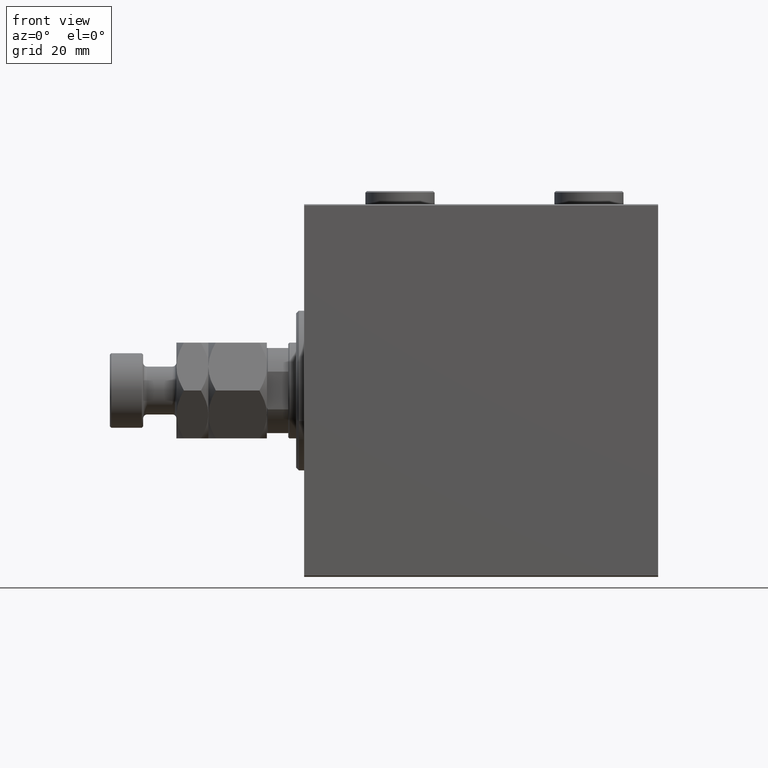
[diagram: clean part render]
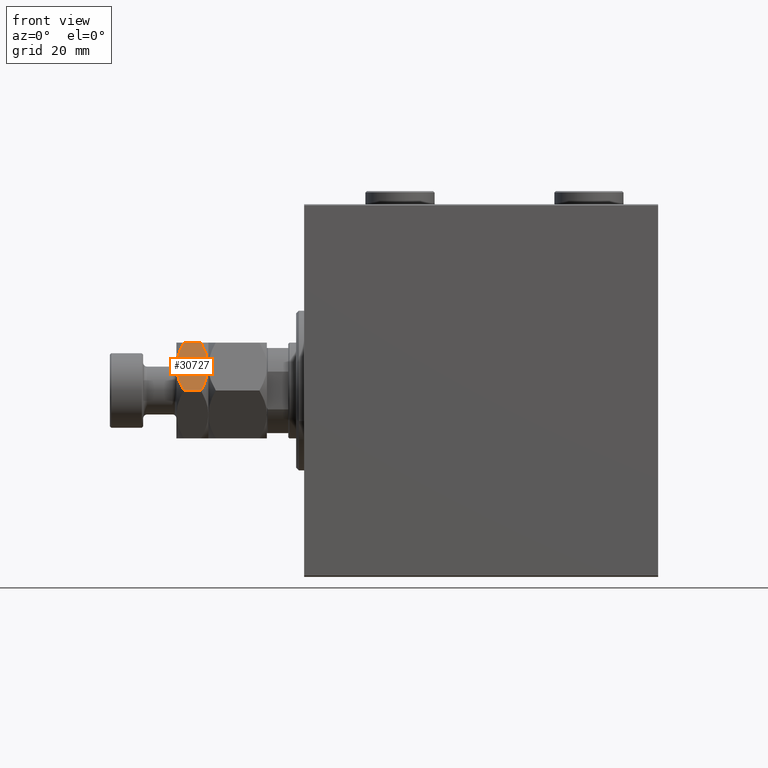
[diagram: same view with one face highlighted and labeled with its STEP entity id]
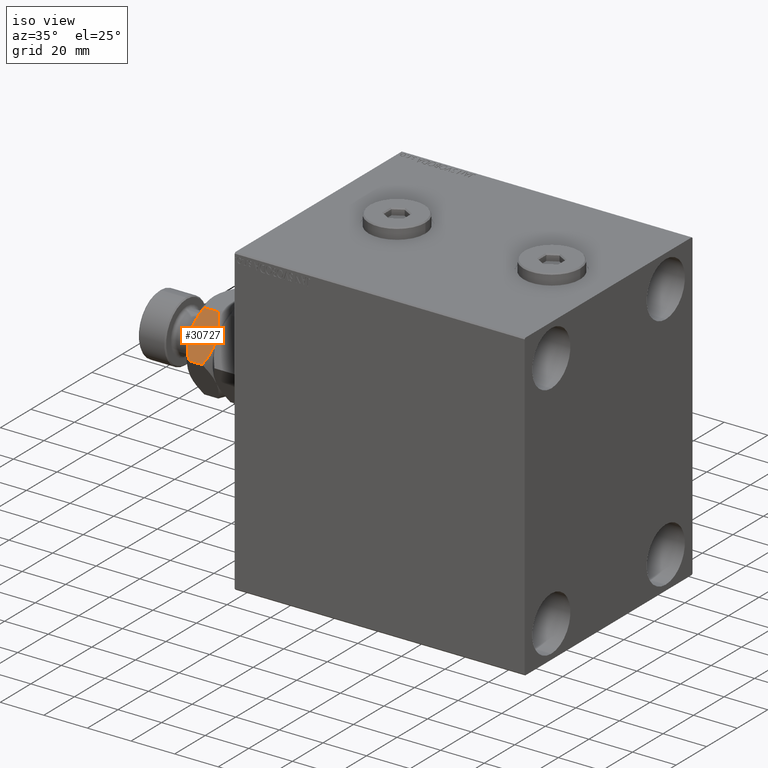
[diagram: same view with one face highlighted and labeled with its STEP entity id]
A machine part, front view. The second image highlights one B-rep face of the part: STEP entity #30727.
A second angle (iso view) of the same face is appended — the face is thin or edge-on in the first view.
In plain terms, the highlighted planar face has unit normal (0, 0.866, -0.5).
Its self-contained STEP definition (entity closure, byte-faithful):
#407 = CARTESIAN_POINT ( 'NONE',  ( 7.023280245922047804, -16.72971695024924443, 33.86127740090142879 ) ) ;
#1739 = CARTESIAN_POINT ( 'NONE',  ( 17.99999999999999645, -10.39230484541326227, 34.00000000000000000 ) ) ;
#2135 = VECTOR ( 'NONE', #37909, 1000.000000000000000 ) ;
#2703 = DIRECTION ( 'NONE',  ( -0.8660254037844384856, -0.5000000000000003331, 0.000000000000000000 ) ) ;
#3154 = VERTEX_POINT ( 'NONE', #41171 ) ;
#3763 = CARTESIAN_POINT ( 'NONE',  ( 8.999999999999992895, -15.58845726811989252, 22.00000000000000000 ) ) ;
#3811 = CARTESIAN_POINT ( 'NONE',  ( 15.13928418966203360, -12.04393988858689646, 32.72742529849575277 ) ) ;
#3854 = LINE ( 'NONE', #17660, #17603 ) ;
#3997 = CARTESIAN_POINT ( 'NONE',  ( 9.790461530629867681, -15.13208409062669269, 22.01733285647409133 ) ) ;
#4287 = CARTESIAN_POINT ( 'NONE',  ( 10.56546083169953754, -14.68463803553234825, 34.00000000000000000 ) ) ;
#4608 = CARTESIAN_POINT ( 'NONE',  ( 1.116285825713513451E-15, -20.78460969082652809, 24.78460969082652454 ) ) ;
#7096 = CARTESIAN_POINT ( 'NONE',  ( 9.394125676616228660, -15.36090870263096875, 22.00000000000000000 ) ) ;
#8761 = EDGE_CURVE ( 'NONE', #39961, #12333, #10545, .T. ) ;
#9390 = AXIS2_PLACEMENT_3D ( 'NONE', #42673, #24358, #2703 ) ;
#10343 = ORIENTED_EDGE ( 'NONE', *, *, #23320, .F. ) ;
#10545 = B_SPLINE_CURVE_WITH_KNOTS ( 'NONE', 3,
 ( #43762, #4287, #18555, #3811, #36173, #40202 ),
 .UNSPECIFIED., .F., .F.,
 ( 4, 2, 4 ),
 ( 0.01077282027732747241, 0.01612137750481873466, 0.02146993473230999344 ),
 .UNSPECIFIED. ) ;
#10882 = CARTESIAN_POINT ( 'NONE',  ( 16.58866960374794530, -11.20713682960488100, 23.96977770663490048 ) ) ;
#11091 = CARTESIAN_POINT ( 'NONE',  ( 2.854601888853814273, -19.13650452186756112, 32.72261692211013440 ) ) ;
#11362 = CARTESIAN_POINT ( 'NONE',  ( 12.90267270303526814, -13.33524813246347129, 22.53708555582900175 ) ) ;
#11365 = VERTEX_POINT ( 'NONE', #36300 ) ;
#12195 = CARTESIAN_POINT ( 'NONE',  ( 5.895697476400520110, -17.38072716576608912, 22.27639590712158935 ) ) ;
#12333 = VERTEX_POINT ( 'NONE', #21374 ) ;
#13987 = ORIENTED_EDGE ( 'NONE', *, *, #44978, .F. ) ;
#17603 = VECTOR ( 'NONE', #21233, 1000.000000000000000 ) ;
#17660 = CARTESIAN_POINT ( 'NONE',  ( 3.096890948757162212E-15, -20.78460969082652809, 34.00000000000000000 ) ) ;
#18555 = CARTESIAN_POINT ( 'NONE',  ( 12.10430252359948256, -13.79618737047369947, 33.72360409287841065 ) ) ;
#18705 = CARTESIAN_POINT ( 'NONE',  ( 8.605874323383773117, -15.81600583360881096, 34.00000000000000000 ) ) ;
#20803 = EDGE_CURVE ( 'NONE', #11365, #25445, #3854, .T. ) ;
#21233 = DIRECTION ( 'NONE',  ( -0.000000000000000000, -0.000000000000000000, -1.000000000000000000 ) ) ;
#21374 = CARTESIAN_POINT ( 'NONE',  ( 17.99999999999999645, -10.39230484541326227, 31.21539030917348612 ) ) ;
#21402 = ORIENTED_EDGE ( 'NONE', *, *, #20803, .T. ) ;
#21833 = CARTESIAN_POINT ( 'NONE',  ( 17.99999999999999645, -10.39230484541326227, 24.78460969082651744 ) ) ;
#22487 = ORIENTED_EDGE ( 'NONE', *, *, #8761, .F. ) ;
#23320 = EDGE_CURVE ( 'NONE', #3154, #25445, #23532, .T. ) ;
#23532 = B_SPLINE_CURVE_WITH_KNOTS ( 'NONE', 3,
 ( #37209, #32933, #12195, #26725, #26491, #4608 ),
 .UNSPECIFIED., .F., .F.,
 ( 4, 2, 4 ),
 ( 0.01077282027732746894, 0.01612137750481873466, 0.02146993473231000038 ),
 .UNSPECIFIED. ) ;
#24358 = DIRECTION ( 'NONE',  ( -0.5000000000000003331, 0.8660254037844384856, 0.000000000000000000 ) ) ;
#25413 = CARTESIAN_POINT ( 'NONE',  ( 15.14539811114618395, -12.04041001437222391, 23.27738307788987271 ) ) ;
#25445 = VERTEX_POINT ( 'NONE', #35612 ) ;
#25619 = CARTESIAN_POINT ( 'NONE',  ( 2.298595589355136900E-15, -20.78460969082652809, 31.21539030917348256 ) ) ;
#25812 = ORIENTED_EDGE ( 'NONE', *, *, #39179, .F. ) ;
#26491 = CARTESIAN_POINT ( 'NONE',  ( 1.409696000463986465, -19.97072132548310819, 23.97072132548305845 ) ) ;
#26725 = CARTESIAN_POINT ( 'NONE',  ( 2.860715810337963738, -19.13297464765288680, 23.27257470150424368 ) ) ;
#28211 = CARTESIAN_POINT ( 'NONE',  ( 9.000000000000001776, -15.58845726811988897, 34.00000000000000000 ) ) ;
#30727 = ADVANCED_FACE ( 'NONE', ( #38877 ), #39112, .F. ) ;
#32933 = CARTESIAN_POINT ( 'NONE',  ( 7.434539168300455358, -16.49227650070744389, 22.00000000000001066 ) ) ;
#32997 = CARTESIAN_POINT ( 'NONE',  ( 5.858009779716805809, -17.40248616759157585, 33.65943689774474024 ) ) ;
#33233 = CARTESIAN_POINT ( 'NONE',  ( 9.000000000000001776, -15.58845726811988897, 34.00000000000000000 ) ) ;
#35612 = CARTESIAN_POINT ( 'NONE',  ( 1.116285825713513451E-15, -20.78460969082652809, 24.78460969082652454 ) ) ;
#36173 = CARTESIAN_POINT ( 'NONE',  ( 16.59030399953601176, -11.20619321075668218, 32.02927867451695221 ) ) ;
#36300 = CARTESIAN_POINT ( 'NONE',  ( 2.298595589355136900E-15, -20.78460969082652809, 31.21539030917348256 ) ) ;
#36368 = CARTESIAN_POINT ( 'NONE',  ( 10.58425150785353885, -14.67378923359657783, 22.08694689011814916 ) ) ;
#36382 = B_SPLINE_CURVE_WITH_KNOTS ( 'NONE', 3,
 ( #21833, #10882, #25413, #11362, #39920, #36599, #36368, #3997, #7096, #3763 ),
 .UNSPECIFIED., .F., .F.,
 ( 4, 2, 2, 2, 4 ),
 ( 2.544307986796311447E-07, 0.005386537354063073400, 0.008079678815695269870, 0.009426249546511368538, 0.01077282027732746894 ),
 .UNSPECIFIED. ) ;
#36573 = CARTESIAN_POINT ( 'NONE',  ( 5.097327296964723864, -17.84166640377631907, 33.46291444417099115 ) ) ;
#36599 = CARTESIAN_POINT ( 'NONE',  ( 10.97671975407794775, -14.44719758599053883, 22.13872259909857121 ) ) ;
#36805 = CARTESIAN_POINT ( 'NONE',  ( 8.209538469370128766, -16.04483044561309057, 33.98266714352590867 ) ) ;
#37209 = CARTESIAN_POINT ( 'NONE',  ( 8.999999999999992895, -15.58845726811989252, 22.00000000000000000 ) ) ;
#37549 = B_SPLINE_CURVE_WITH_KNOTS ( 'NONE', 3,
 ( #25619, #43690, #11091, #36573, #32997, #407, #40360, #36805, #18705, #33233 ),
 .UNSPECIFIED., .F., .F.,
 ( 4, 2, 2, 2, 4 ),
 ( 2.544307986811667625E-07, 0.005386537354063076002, 0.008079678815695271604, 0.009426249546511372007, 0.01077282027732747241 ),
 .UNSPECIFIED. ) ;
#37648 = ORIENTED_EDGE ( 'NONE', *, *, #40608, .F. ) ;
#37909 = DIRECTION ( 'NONE',  ( -0.000000000000000000, -0.000000000000000000, -1.000000000000000000 ) ) ;
#38374 = LINE ( 'NONE', #1739, #2135 ) ;
#38877 = FACE_OUTER_BOUND ( 'NONE', #39563, .T. ) ;
#39112 = PLANE ( 'NONE',  #9390 ) ;
#39179 = EDGE_CURVE ( 'NONE', #11365, #39961, #37549, .T. ) ;
#39563 = EDGE_LOOP ( 'NONE', ( #37648, #13987, #22487, #25812, #21402, #10343 ) ) ;
#39920 = CARTESIAN_POINT ( 'NONE',  ( 12.14199022028319774, -13.77442836864821807, 22.34056310225527042 ) ) ;
#39961 = VERTEX_POINT ( 'NONE', #28211 ) ;
#40202 = CARTESIAN_POINT ( 'NONE',  ( 17.99999999999999645, -10.39230484541326227, 31.21539030917348612 ) ) ;
#40360 = CARTESIAN_POINT ( 'NONE',  ( 7.415748492146459370, -16.50312530264320543, 33.91305310988183663 ) ) ;
#40608 = EDGE_CURVE ( 'NONE', #41361, #3154, #36382, .T. ) ;
#40742 = CARTESIAN_POINT ( 'NONE',  ( 17.99999999999999645, -10.39230484541326227, 24.78460969082651744 ) ) ;
#41171 = CARTESIAN_POINT ( 'NONE',  ( 8.999999999999992895, -15.58845726811989252, 22.00000000000000000 ) ) ;
#41361 = VERTEX_POINT ( 'NONE', #40742 ) ;
#42673 = CARTESIAN_POINT ( 'NONE',  ( 3.096890948757162212E-15, -20.78460969082652809, 34.00000000000000000 ) ) ;
#43690 = CARTESIAN_POINT ( 'NONE',  ( 1.411330396252049368, -19.96977770663490404, 32.03022229336509952 ) ) ;
#43762 = CARTESIAN_POINT ( 'NONE',  ( 9.000000000000001776, -15.58845726811988897, 34.00000000000000000 ) ) ;
#44978 = EDGE_CURVE ( 'NONE', #12333, #41361, #38374, .T. ) ;